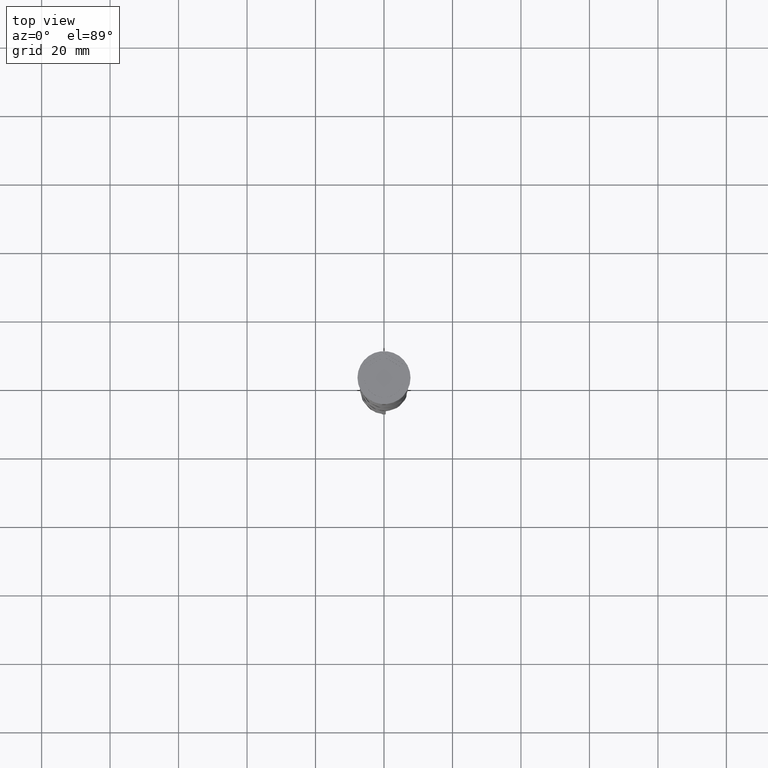
[diagram: clean part render]
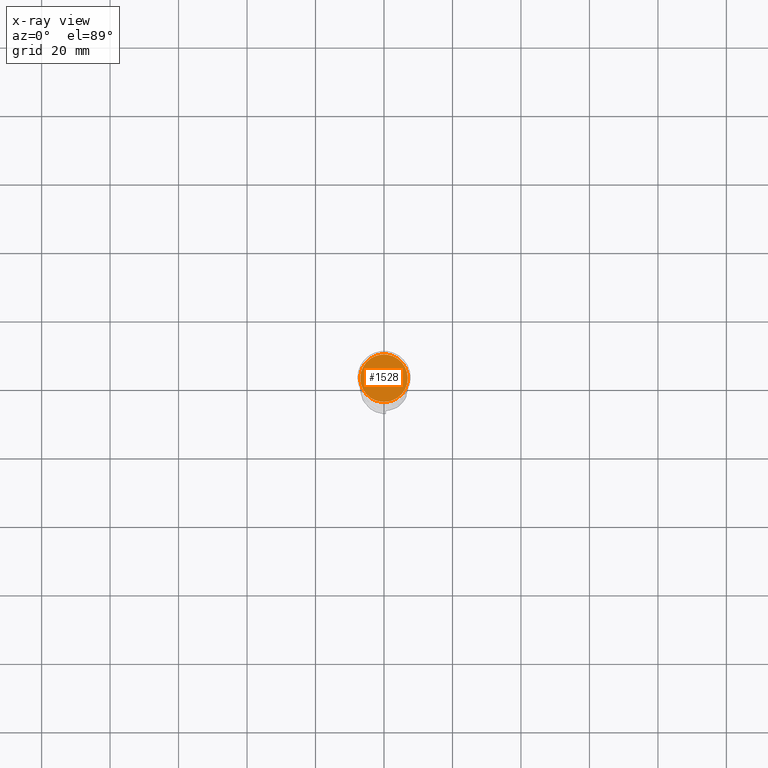
[diagram: x-ray — body ghosted, one internal face saturated and labeled with its STEP entity id]
A machine part, top view, then the same camera in x-ray: the body is ghosted and one INTERNAL B-rep face — a face not visible from any outside direction — is saturated and labeled: STEP entity #1528.
In plain terms, the highlighted planar face has unit normal (0, 0, -1).
Its self-contained STEP definition (entity closure, byte-faithful):
#168 = DIRECTION ( 'NONE',  ( -0.000000000000000000, -0.000000000000000000, 1.000000000000000000 ) ) ;
#219 = CARTESIAN_POINT ( 'NONE',  ( -6.950000000000001066, 0.000000000000000000, -10.50000000000000178 ) ) ;
#453 = CARTESIAN_POINT ( 'NONE',  ( 0.000000000000000000, 0.000000000000000000, -10.50000000000000178 ) ) ;
#607 = DIRECTION ( 'NONE',  ( -1.000000000000000000, 0.000000000000000000, 0.000000000000000000 ) ) ;
#1045 = DIRECTION ( 'NONE',  ( 0.000000000000000000, 0.000000000000000000, -1.000000000000000000 ) ) ;
#1238 = ORIENTED_EDGE ( 'NONE', *, *, #3112, .T. ) ;
#1288 = ORIENTED_EDGE ( 'NONE', *, *, #2854, .T. ) ;
#1528 = ADVANCED_FACE ( 'NONE', ( #2512 ), #2490, .F. ) ;
#1596 = VERTEX_POINT ( 'NONE', #3535 ) ;
#1638 = DIRECTION ( 'NONE',  ( -1.000000000000000000, 0.000000000000000000, 0.000000000000000000 ) ) ;
#2042 = VERTEX_POINT ( 'NONE', #219 ) ;
#2071 = CIRCLE ( 'NONE', #2503, 6.950000000000001066 ) ;
#2133 = AXIS2_PLACEMENT_3D ( 'NONE', #453, #168, #1638 ) ;
#2490 = PLANE ( 'NONE',  #2561 ) ;
#2503 = AXIS2_PLACEMENT_3D ( 'NONE', #2648, #3239, #607 ) ;
#2512 = FACE_OUTER_BOUND ( 'NONE', #3256, .T. ) ;
#2550 = DIRECTION ( 'NONE',  ( -1.000000000000000000, 0.000000000000000000, -0.000000000000000000 ) ) ;
#2561 = AXIS2_PLACEMENT_3D ( 'NONE', #3677, #1045, #2550 ) ;
#2648 = CARTESIAN_POINT ( 'NONE',  ( 0.000000000000000000, 0.000000000000000000, -10.50000000000000178 ) ) ;
#2854 = EDGE_CURVE ( 'NONE', #1596, #2042, #3184, .T. ) ;
#3112 = EDGE_CURVE ( 'NONE', #2042, #1596, #2071, .T. ) ;
#3184 = CIRCLE ( 'NONE', #2133, 6.950000000000001066 ) ;
#3239 = DIRECTION ( 'NONE',  ( -0.000000000000000000, -0.000000000000000000, 1.000000000000000000 ) ) ;
#3256 = EDGE_LOOP ( 'NONE', ( #1238, #1288 ) ) ;
#3535 = CARTESIAN_POINT ( 'NONE',  ( 6.950000000000001066, 8.694992273946209718E-16, -10.50000000000000178 ) ) ;
#3677 = CARTESIAN_POINT ( 'NONE',  ( 0.000000000000000000, 0.000000000000000000, -10.50000000000000178 ) ) ;